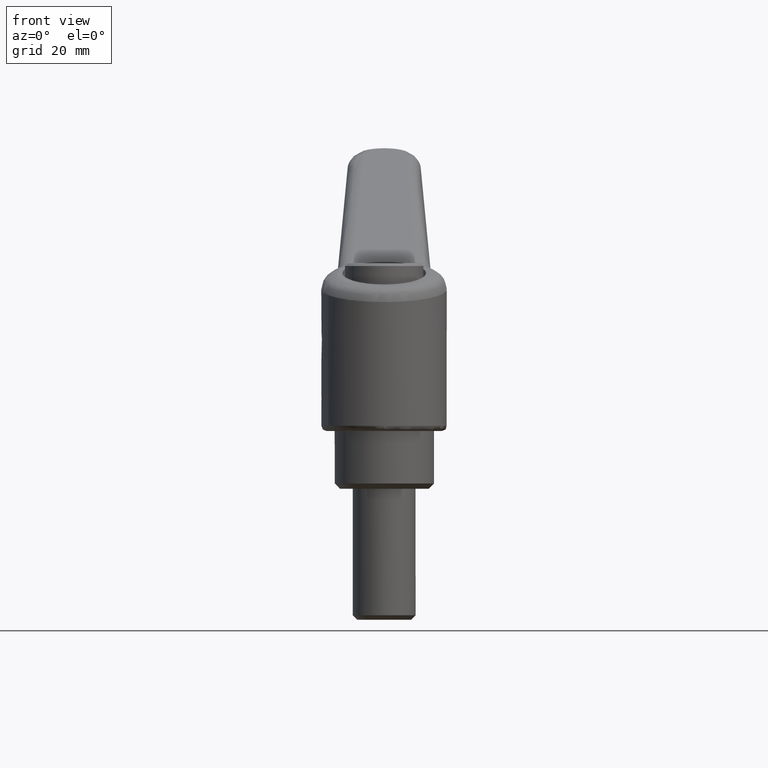
[diagram: clean part render]
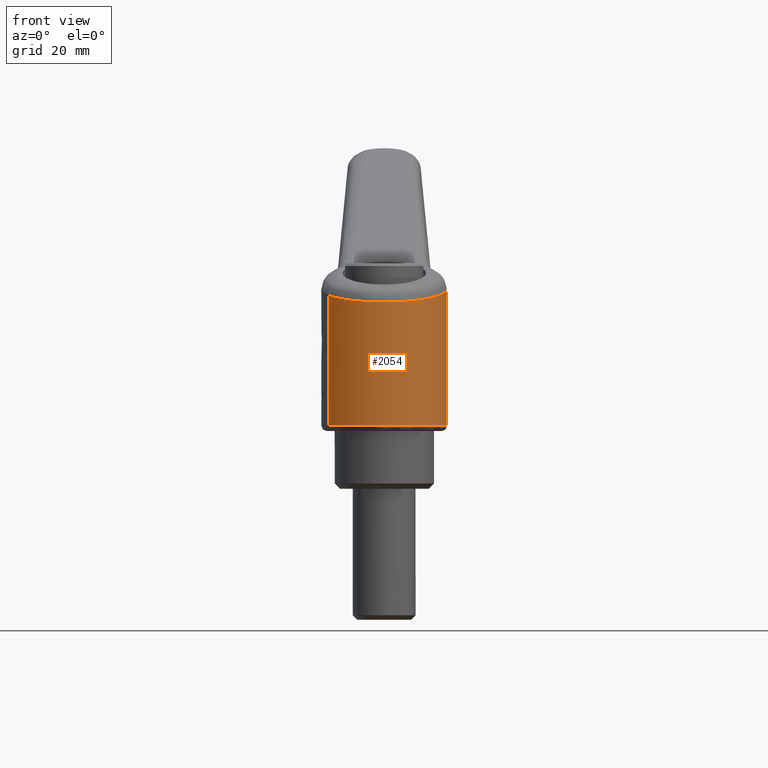
[diagram: same view with one face highlighted and labeled with its STEP entity id]
A machine part, front view. The second image highlights one B-rep face of the part: STEP entity #2054.
In plain terms, the highlighted face is a freeform B-spline surface patch.
Its self-contained STEP definition (entity closure, byte-faithful):
#1950=CARTESIAN_POINT('',(4.433234522711266,-11.152360422107307,40.185671453175701));
#1951=CARTESIAN_POINT('',(4.354265703763787,-11.182467679619448,40.185671453175701));
#1952=CARTESIAN_POINT('',(-5.709930302688889,-15.019492784685996,40.185671453175708));
#1953=CARTESIAN_POINT('',(-10.644129998138659,-5.540983358820403,40.185671453175701));
#1954=CARTESIAN_POINT('',(-16.185113356959061,5.103146639318257,40.185671453175701));
#1955=CARTESIAN_POINT('',(-5.468928284763322,10.681639495517835,40.185671453175686));
#1956=CARTESIAN_POINT('',(-5.397276166327411,10.718939227477808,40.185671453175694));
#1957=CARTESIAN_POINT('',(4.433234522711266,-11.152360422107307,11.295358212295172));
#1958=CARTESIAN_POINT('',(4.354265703763787,-11.182467679619448,11.295358212295172));
#1959=CARTESIAN_POINT('',(-5.709930302688889,-15.019492784685996,11.295358212295172));
#1960=CARTESIAN_POINT('',(-10.644129998138659,-5.540983358820403,11.295358212295170));
#1961=CARTESIAN_POINT('',(-16.185113356959061,5.103146639318257,11.295358212295170));
#1962=CARTESIAN_POINT('',(-5.468928284763322,10.681639495517835,11.295358212295170));
#1963=CARTESIAN_POINT('',(-5.397276166327411,10.718939227477808,11.295358212295174));
#1971=(BOUNDED_SURFACE()B_SPLINE_SURFACE(2,1,((#1950,#1957),(#1951,#1958),(#1952,#1959),(#1953,#1960),(#1954,#1961),(#1955,#1962),(#1956,#1963)),.UNSPECIFIED.,.F.,.F.,.U.)B_SPLINE_SURFACE_WITH_KNOTS((3,1,2,1,3),(2,2),(0.0,0.190895233556973,18.482566147952841,38.364817141861387,38.555694503289317),(0.0,28.890313240880531),.UNSPECIFIED.)GEOMETRIC_REPRESENTATION_ITEM()RATIONAL_B_SPLINE_SURFACE(((0.961610534185711,0.961610534185711),(0.959248326188186,0.959248326188186),(0.730538238691624,0.730538238691624),(1.0,1.0),(0.707106781186548,0.707106781186548),(1.002811889096681,1.002811889096681),(1.005623778193362,1.005623778193362)))REPRESENTATION_ITEM('')SURFACE());
#1972=CARTESIAN_POINT('',(4.274928216684376,-11.212715493656290,38.901665560539627));
#1973=VERTEX_POINT('',#1972);
#1974=CARTESIAN_POINT('',(-5.540992449780494,10.644125265674511,36.919617074679749));
#1975=VERTEX_POINT('',#1974);
#1976=CARTESIAN_POINT('',(4.274928216684376,-11.212715493656287,38.901665560539634));
#1977=CARTESIAN_POINT('',(-3.362617988830460,-14.124583815908773,37.359469067857439));
#1978=CARTESIAN_POINT('',(-8.868775530244234,-8.083613596884504,36.247652849136401));
#1979=CARTESIAN_POINT('',(-16.236739138144436,-0.000000224872017,34.759896391643792));
#1980=CARTESIAN_POINT('',(-8.868776767336270,8.083613376882697,36.247660168146929));
#1981=CARTESIAN_POINT('',(-7.432376901434004,9.659530965654611,36.537702866726697));
#1982=CARTESIAN_POINT('',(-5.540992449780494,10.644125265674511,36.919617074679756));
#1990=(BOUNDED_CURVE()B_SPLINE_CURVE(2,(#1976,#1977,#1978,#1979,#1980,#1981,#1982),.UNSPECIFIED.,.F.,.U.)B_SPLINE_CURVE_WITH_KNOTS((3,2,2,3),(0.066645576460034,0.333333333333333,0.666666666666667,0.748931757954431),.UNSPECIFIED.)CURVE()GEOMETRIC_REPRESENTATION_ITEM()RATIONAL_B_SPLINE_CURVE((0.916520508219528,0.791235227165871,1.0,0.739064670882372,1.0,0.935602393989807,0.902990837602466))REPRESENTATION_ITEM(''));
#1991=EDGE_CURVE('',#1973,#1975,#1990,.T.);
#1992=ORIENTED_EDGE('',*,*,#1991,.T.);
#1993=CARTESIAN_POINT('',(-5.540977611677146,10.644132989908130,11.999999999848381));
#1994=VERTEX_POINT('',#1993);
#1995=CARTESIAN_POINT('',(-5.540992449780494,10.644125265674511,36.919617074679749));
#1996=CARTESIAN_POINT('',(-5.540977611677146,10.644132989908130,11.999999999848381));
#1997=QUASI_UNIFORM_CURVE('',1,(#1995,#1996),.UNSPECIFIED.,.F.,.U.);
#1998=EDGE_CURVE('',#1975,#1994,#1997,.T.);
#1999=ORIENTED_EDGE('',*,*,#1998,.T.);
#2000=CARTESIAN_POINT('',(-12.0,9.606894E-018,11.999999998658110));
#2001=VERTEX_POINT('',#2000);
#2002=CARTESIAN_POINT('',(-5.540977611677146,10.644132989908130,11.999999999848383));
#2003=CARTESIAN_POINT('',(-12.000000000000002,7.281783188291620,11.999999999472390));
#2004=CARTESIAN_POINT('',(-12.0,9.606894E-018,11.999999998658110));
#2012=(BOUNDED_CURVE()B_SPLINE_CURVE(2,(#2002,#2003,#2004),.UNSPECIFIED.,.F.,.U.)B_SPLINE_CURVE_WITH_KNOTS((3,3),(0.328552040721109,0.500000000000000),.UNSPECIFIED.)CURVE()GEOMETRIC_REPRESENTATION_ITEM()RATIONAL_B_SPLINE_CURVE((0.873773922266626,0.799136221391231,1.0))REPRESENTATION_ITEM(''));
#2013=EDGE_CURVE('',#1994,#2001,#2012,.T.);
#2014=ORIENTED_EDGE('',*,*,#2013,.T.);
#2015=CARTESIAN_POINT('',(-4.239623599935497,-11.226112048740200,11.999999998670891));
#2016=VERTEX_POINT('',#2015);
#2017=CARTESIAN_POINT('',(-12.0,9.606894E-018,11.999999998658110));
#2018=CARTESIAN_POINT('',(-12.0,-8.295348950405078,12.0));
#2019=CARTESIAN_POINT('',(-4.239623599935498,-11.226112048740198,11.999999998670889));
#2027=(BOUNDED_CURVE()B_SPLINE_CURVE(2,(#2017,#2018,#2019),.UNSPECIFIED.,.F.,.U.)B_SPLINE_CURVE_WITH_KNOTS((3,3),(0.500000000000000,0.689999999999597),.UNSPECIFIED.)CURVE()GEOMETRIC_REPRESENTATION_ITEM()RATIONAL_B_SPLINE_CURVE((1.0,0.777401153702248,0.893152553776362))REPRESENTATION_ITEM(''));
#2028=EDGE_CURVE('',#2001,#2016,#2027,.T.);
#2029=ORIENTED_EDGE('',*,*,#2028,.T.);
#2030=CARTESIAN_POINT('',(4.274894466639255,-11.212728361059909,12.000000000000011));
#2031=VERTEX_POINT('',#2030);
#2032=CARTESIAN_POINT('',(-4.239623599935497,-11.226112048740196,11.999999998670887));
#2033=CARTESIAN_POINT('',(-2.190443372211703,-11.999999999999996,11.999999999999996));
#2034=CARTESIAN_POINT('',(0.0,-12.0,12.0));
#2035=CARTESIAN_POINT('',(2.209939857209671,-12.000000000000002,12.000000000000002));
#2036=CARTESIAN_POINT('',(4.274894466639255,-11.212728361059916,12.000000000000005));
#2044=(BOUNDED_CURVE()B_SPLINE_CURVE(2,(#2032,#2033,#2034,#2035,#2036),.UNSPECIFIED.,.F.,.U.)B_SPLINE_CURVE_WITH_KNOTS((3,2,3),(0.689999999999598,0.750000000000000,0.810496191545819),.UNSPECIFIED.)CURVE()GEOMETRIC_REPRESENTATION_ITEM()RATIONAL_B_SPLINE_CURVE((0.893152553776363,0.929705627484300,1.0,0.929124302928760,0.892550283825241))REPRESENTATION_ITEM(''));
#2045=EDGE_CURVE('',#2016,#2031,#2044,.T.);
#2046=ORIENTED_EDGE('',*,*,#2045,.T.);
#2047=CARTESIAN_POINT('',(4.274928216684376,-11.212715493656290,38.901665560539627));
#2048=CARTESIAN_POINT('',(4.274894466639255,-11.212728361059909,12.000000000000011));
#2049=QUASI_UNIFORM_CURVE('',1,(#2047,#2048),.UNSPECIFIED.,.F.,.U.);
#2050=EDGE_CURVE('',#1973,#2031,#2049,.T.);
#2051=ORIENTED_EDGE('',*,*,#2050,.F.);
#2052=EDGE_LOOP('',(#1992,#1999,#2014,#2029,#2046,#2051));
#2053=FACE_OUTER_BOUND('',#2052,.T.);
#2054=ADVANCED_FACE('',(#2053),#1971,.T.);